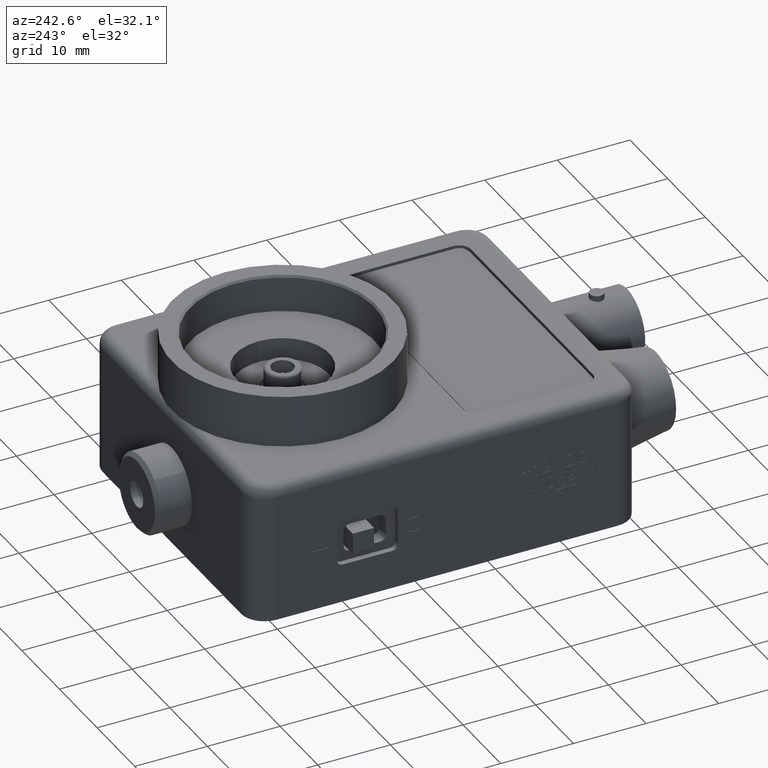
[diagram: clean part render]
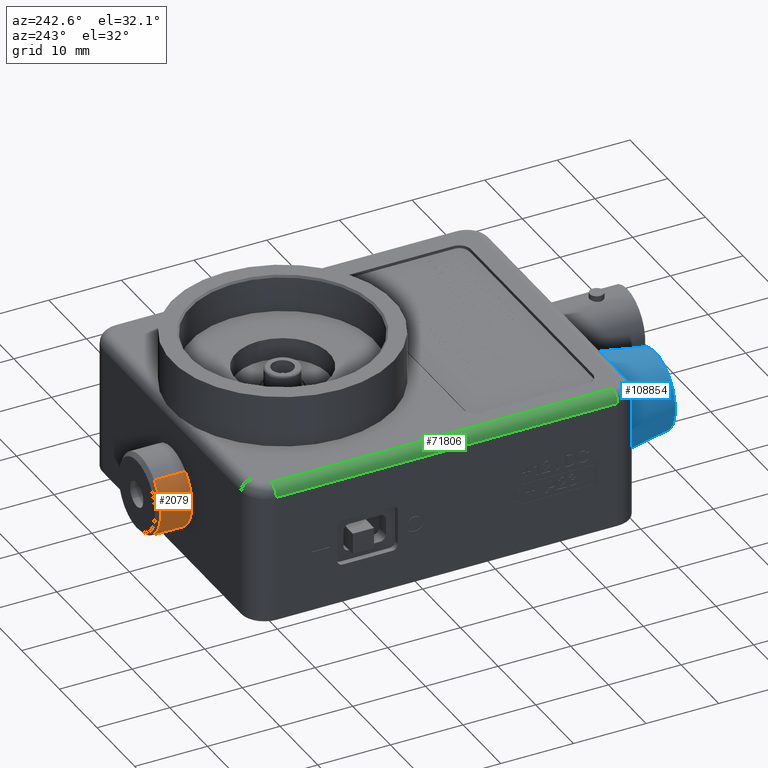
[diagram: same view with three faces highlighted in distinct colors, each labeled with its STEP entity id]
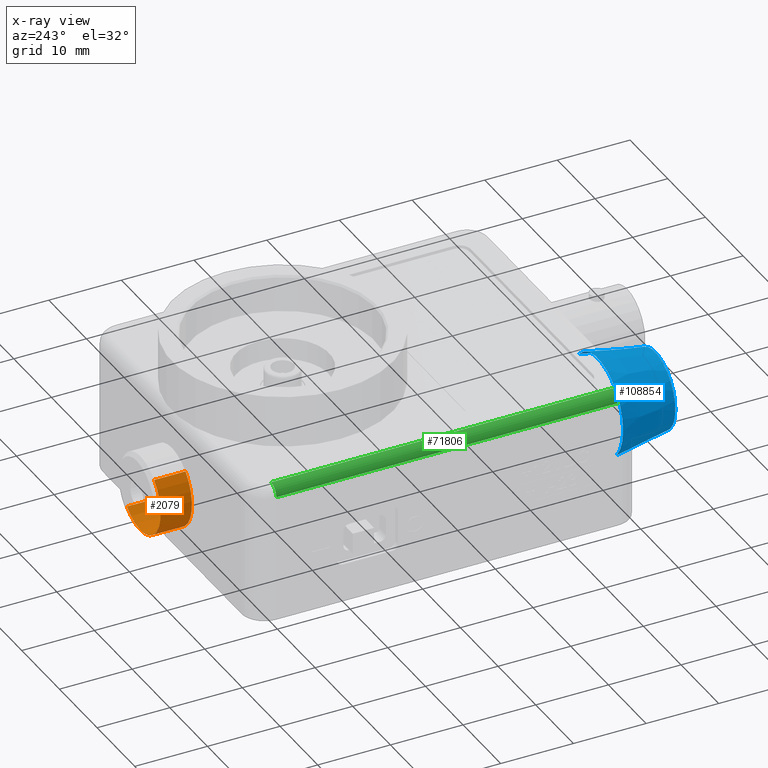
[diagram: x-ray of the same camera — body ghosted, the three highlighted faces saturated]
A machine part, auxiliary view with three faces highlighted in distinct colors.
The next image is the same camera in x-ray (body ghosted, the three faces saturated) — at least one of them is partly hidden behind the body in this view.
Their STEP definitions:

[orange] entity #2079 — the highlighted cylindrical surface (partial cylindrical patch) has radius 5.334 mm, axis along (0, 1, 0).
#2079 = ADVANCED_FACE ( 'NONE', ( #81394 ), #65444, .T. ) ;
#2466 = DIRECTION ( 'NONE',  ( 0.0000000000000000000, 1.000000000000000000, 0.0000000000000000000 ) ) ;
#3750 = EDGE_CURVE ( 'NONE', #24296, #100043, #37556, .T. ) ;
#4723 = DIRECTION ( 'NONE',  ( 0.0000000000000000000, 1.000000000000000000, 0.0000000000000000000 ) ) ;
#10917 = DIRECTION ( 'NONE',  ( -0.0000000000000000000, -1.000000000000000000, -0.0000000000000000000 ) ) ;
#11934 = EDGE_CURVE ( 'NONE', #111911, #100043, #129562, .T. ) ;
#12579 = ORIENTED_EDGE ( 'NONE', *, *, #85209, .T. ) ;
#23349 = AXIS2_PLACEMENT_3D ( 'NONE', #89732, #28663, #100007 ) ;
#23841 = CARTESIAN_POINT ( 'NONE',  ( 0.9923209466100489900, 2.100000000000000100, 0.1755825522940508100 ) ) ;
#24296 = VERTEX_POINT ( 'NONE', #114654 ) ;
#28653 = AXIS2_PLACEMENT_3D ( 'NONE', #72097, #10917, #82247 ) ;
#28663 = DIRECTION ( 'NONE',  ( 0.0000000000000000000, 1.000000000000000000, 0.0000000000000000000 ) ) ;
#37556 = CIRCLE ( 'NONE', #28653, 0.2099999999999999600 ) ;
#39249 = VERTEX_POINT ( 'NONE', #105166 ) ;
#41910 = DIRECTION ( 'NONE',  ( 0.0000000000000000000, 1.000000000000000000, 0.0000000000000000000 ) ) ;
#43030 = CARTESIAN_POINT ( 'NONE',  ( 0.8500000000000000900, 2.100000000000000100, 0.3300000000000001300 ) ) ;
#54771 = LINE ( 'NONE', #93486, #105793 ) ;
#62218 = EDGE_LOOP ( 'NONE', ( #72583, #12579, #90927, #76916 ) ) ;
#65444 = CYLINDRICAL_SURFACE ( 'NONE', #85701, 0.2099999999999999600 ) ;
#69007 = CIRCLE ( 'NONE', #23349, 0.2099999999999999600 ) ;
#72097 = CARTESIAN_POINT ( 'NONE',  ( 0.8500000000000000900, 2.270000000000000000, 0.3300000000000001300 ) ) ;
#72583 = ORIENTED_EDGE ( 'NONE', *, *, #95932, .T. ) ;
#76095 = CARTESIAN_POINT ( 'NONE',  ( 0.9923209466100489900, 2.100000000000000100, 0.1755825522940508100 ) ) ;
#76916 = ORIENTED_EDGE ( 'NONE', *, *, #11934, .F. ) ;
#81394 = FACE_OUTER_BOUND ( 'NONE', #62218, .T. ) ;
#82247 = DIRECTION ( 'NONE',  ( 0.6777187933811854600, 0.0000000000000000000, -0.7353211795521396000 ) ) ;
#85209 = EDGE_CURVE ( 'NONE', #39249, #24296, #54771, .T. ) ;
#85701 = AXIS2_PLACEMENT_3D ( 'NONE', #43030, #2466, #114803 ) ;
#89732 = CARTESIAN_POINT ( 'NONE',  ( 0.8500000000000000900, 2.100000000000000100, 0.3300000000000001300 ) ) ;
#90927 = ORIENTED_EDGE ( 'NONE', *, *, #3750, .T. ) ;
#93486 = CARTESIAN_POINT ( 'NONE',  ( 0.7076790533899511800, 2.100000000000000100, 0.4844174477059494100 ) ) ;
#95932 = EDGE_CURVE ( 'NONE', #111911, #39249, #69007, .T. ) ;
#100007 = DIRECTION ( 'NONE',  ( 0.6777187933811854600, 0.0000000000000000000, -0.7353211795521396000 ) ) ;
#100043 = VERTEX_POINT ( 'NONE', #118557 ) ;
#105166 = CARTESIAN_POINT ( 'NONE',  ( 0.7076790533899511800, 2.100000000000000100, 0.4844174477059494100 ) ) ;
#105793 = VECTOR ( 'NONE', #41910, 39.37007874015748100 ) ;
#111911 = VERTEX_POINT ( 'NONE', #23841 ) ;
#114654 = CARTESIAN_POINT ( 'NONE',  ( 0.7076790533899511800, 2.270000000000000000, 0.4844174477059494100 ) ) ;
#114803 = DIRECTION ( 'NONE',  ( 0.6777187933811854600, 0.0000000000000000000, -0.7353211795521396000 ) ) ;
#118557 = CARTESIAN_POINT ( 'NONE',  ( 0.9923209466100489900, 2.270000000000000000, 0.1755825522940508100 ) ) ;
#126405 = VECTOR ( 'NONE', #4723, 39.37007874015748100 ) ;
#129562 = LINE ( 'NONE', #76095, #126405 ) ;

[blue] entity #108854 — the highlighted conical surface has half-angle 10 deg.
#1832 = AXIS2_PLACEMENT_3D ( 'NONE', #76150, #84111, #76565 ) ;
#1939 = DIRECTION ( 'NONE',  ( -0.7380313187773465100, -8.263232915062124700E-017, -0.6747664577494724100 ) ) ;
#10655 = CIRCLE ( 'NONE', #38000, 0.2650000000000000700 ) ;
#13446 = EDGE_LOOP ( 'NONE', ( #14402, #129576, #53503, #63267 ) ) ;
#14402 = ORIENTED_EDGE ( 'NONE', *, *, #18597, .T. ) ;
#16097 = VERTEX_POINT ( 'NONE', #46665 ) ;
#18597 = EDGE_CURVE ( 'NONE', #30653, #109587, #90707, .T. ) ;
#23873 = CONICAL_SURFACE ( 'NONE', #1832, 0.2650000000000000700, 0.1745329251994333400 ) ;
#25182 = CARTESIAN_POINT ( 'NONE',  ( 0.6455782994759956500, 3.751355149603842600E-017, 0.5788131113036092400 ) ) ;
#28704 = DIRECTION ( 'NONE',  ( -0.1281577935668078400, 0.9848077530122080200, -0.1171719657389660400 ) ) ;
#30653 = VERTEX_POINT ( 'NONE', #130320 ) ;
#30716 = EDGE_CURVE ( 'NONE', #30653, #73994, #68381, .T. ) ;
#36950 = CARTESIAN_POINT ( 'NONE',  ( 0.4499999999999988500, -0.3117364817766691300, 0.3999999999999990200 ) ) ;
#37179 = LINE ( 'NONE', #25182, #91453 ) ;
#38000 = AXIS2_PLACEMENT_3D ( 'NONE', #124087, #63053, #1939 ) ;
#39846 = FACE_OUTER_BOUND ( 'NONE', #13446, .T. ) ;
#46665 = CARTESIAN_POINT ( 'NONE',  ( 0.6455782994759956500, 3.751355149603844400E-017, 0.5788131113036092400 ) ) ;
#47294 = DIRECTION ( 'NONE',  ( 0.7380313187773465100, 0.0000000000000000000, 0.6747664577494725300 ) ) ;
#53503 = ORIENTED_EDGE ( 'NONE', *, *, #103918, .T. ) ;
#62037 = CARTESIAN_POINT ( 'NONE',  ( 0.6050105241344847500, -0.3117364817766691300, 0.5417228505389086700 ) ) ;
#63053 = DIRECTION ( 'NONE',  ( -2.027184870627574200E-031, -1.000000000000000000, 1.224606353822364700E-016 ) ) ;
#63267 = ORIENTED_EDGE ( 'NONE', *, *, #30716, .F. ) ;
#68381 = LINE ( 'NONE', #79527, #95457 ) ;
#73994 = VERTEX_POINT ( 'NONE', #120889 ) ;
#75027 = AXIS2_PLACEMENT_3D ( 'NONE', #36950, #108274, #47294 ) ;
#76150 = CARTESIAN_POINT ( 'NONE',  ( 0.4499999999999988500, 1.561598427112379200E-017, 0.3999999999999989700 ) ) ;
#76565 = DIRECTION ( 'NONE',  ( -0.7380313187773465100, -8.263232915062124700E-017, -0.6747664577494724100 ) ) ;
#79527 = CARTESIAN_POINT ( 'NONE',  ( 0.2544217005240019800, -6.281582953790846600E-018, 0.2211868886963886900 ) ) ;
#84111 = DIRECTION ( 'NONE',  ( 2.027184870627574200E-031, 1.000000000000000000, -1.224606353822364700E-016 ) ) ;
#86265 = DIRECTION ( 'NONE',  ( 0.1281577935668078400, 0.9848077530122080200, 0.1171719657389657900 ) ) ;
#90707 = CIRCLE ( 'NONE', #75027, 0.2100324473916404800 ) ;
#91453 = VECTOR ( 'NONE', #86265, 39.37007874015748900 ) ;
#95457 = VECTOR ( 'NONE', #28704, 39.37007874015748900 ) ;
#103918 = EDGE_CURVE ( 'NONE', #16097, #73994, #10655, .T. ) ;
#108274 = DIRECTION ( 'NONE',  ( 2.027184870627574200E-031, 1.000000000000000000, -1.224606353822364700E-016 ) ) ;
#108854 = ADVANCED_FACE ( 'NONE', ( #39846 ), #23873, .T. ) ;
#109587 = VERTEX_POINT ( 'NONE', #62037 ) ;
#120889 = CARTESIAN_POINT ( 'NONE',  ( 0.2544217005240019800, -6.281582953790854300E-018, 0.2211868886963886900 ) ) ;
#124087 = CARTESIAN_POINT ( 'NONE',  ( 0.4499999999999988500, 1.561598427112379200E-017, 0.3999999999999989700 ) ) ;
#128355 = EDGE_CURVE ( 'NONE', #109587, #16097, #37179, .T. ) ;
#129576 = ORIENTED_EDGE ( 'NONE', *, *, #128355, .T. ) ;
#130320 = CARTESIAN_POINT ( 'NONE',  ( 0.2949894758655127700, -0.3117364817766691300, 0.2582771494610893200 ) ) ;

[green] entity #71806 — the highlighted cylindrical surface (edge-blend (fillet) strip) has radius 1.397 mm, axis along (0, -1, 0).
#3998 = CARTESIAN_POINT ( 'NONE',  ( 0.05499999999999999300, 2.100000000000000100, 0.6950000000000000600 ) ) ;
#13629 = VERTEX_POINT ( 'NONE', #35243 ) ;
#17330 = CIRCLE ( 'NONE', #83951, 0.05499999999999995900 ) ;
#19372 = CARTESIAN_POINT ( 'NONE',  ( 0.05499999999999999300, 2.100000000000000100, 0.7500000000000001100 ) ) ;
#25171 = CARTESIAN_POINT ( 'NONE',  ( 0.0000000000000000000, 0.1249999999999999900, 0.6950000000000000600 ) ) ;
#26067 = ORIENTED_EDGE ( 'NONE', *, *, #59308, .F. ) ;
#32218 = EDGE_CURVE ( 'NONE', #117729, #124160, #42271, .T. ) ;
#33706 = EDGE_LOOP ( 'NONE', ( #89777, #26067, #120945, #131342 ) ) ;
#35243 = CARTESIAN_POINT ( 'NONE',  ( 0.05499999999999999300, 1.975000000000000100, 0.7500000000000001100 ) ) ;
#35534 = CARTESIAN_POINT ( 'NONE',  ( 0.0000000000000000000, 0.0000000000000000000, 0.6950000000000000600 ) ) ;
#37472 = VERTEX_POINT ( 'NONE', #128197 ) ;
#39081 = AXIS2_PLACEMENT_3D ( 'NONE', #3998, #115895, #126592 ) ;
#39841 = CARTESIAN_POINT ( 'NONE',  ( 0.05499999999999998600, 0.1249999999999999900, 0.6950000000000000600 ) ) ;
#42271 = CIRCLE ( 'NONE', #89450, 0.05499999999999995900 ) ;
#47430 = EDGE_CURVE ( 'NONE', #117729, #37472, #122763, .T. ) ;
#49904 = LINE ( 'NONE', #19372, #73864 ) ;
#50137 = DIRECTION ( 'NONE',  ( 0.0000000000000000000, 0.0000000000000000000, 1.000000000000000000 ) ) ;
#53188 = CARTESIAN_POINT ( 'NONE',  ( 0.05500000000000000000, 1.975000000000000100, 0.6950000000000000600 ) ) ;
#59308 = EDGE_CURVE ( 'NONE', #13629, #124160, #49904, .T. ) ;
#60126 = CYLINDRICAL_SURFACE ( 'NONE', #39081, 0.05499999999999995900 ) ;
#60392 = DIRECTION ( 'NONE',  ( 0.0000000000000000000, -1.000000000000000000, 0.0000000000000000000 ) ) ;
#62370 = EDGE_CURVE ( 'NONE', #37472, #13629, #17330, .T. ) ;
#63476 = DIRECTION ( 'NONE',  ( 0.0000000000000000000, 0.0000000000000000000, 1.000000000000000000 ) ) ;
#71806 = ADVANCED_FACE ( 'NONE', ( #100044 ), #60126, .T. ) ;
#73864 = VECTOR ( 'NONE', #60392, 39.37007874015748100 ) ;
#83951 = AXIS2_PLACEMENT_3D ( 'NONE', #53188, #124486, #63476 ) ;
#89450 = AXIS2_PLACEMENT_3D ( 'NONE', #39841, #111183, #50137 ) ;
#89777 = ORIENTED_EDGE ( 'NONE', *, *, #32218, .T. ) ;
#92477 = VECTOR ( 'NONE', #96624, 39.37007874015748100 ) ;
#96624 = DIRECTION ( 'NONE',  ( -0.0000000000000000000, 1.000000000000000000, -0.0000000000000000000 ) ) ;
#100044 = FACE_OUTER_BOUND ( 'NONE', #33706, .T. ) ;
#111183 = DIRECTION ( 'NONE',  ( 0.0000000000000000000, 1.000000000000000000, -0.0000000000000000000 ) ) ;
#115895 = DIRECTION ( 'NONE',  ( 0.0000000000000000000, -1.000000000000000000, 0.0000000000000000000 ) ) ;
#117729 = VERTEX_POINT ( 'NONE', #25171 ) ;
#120945 = ORIENTED_EDGE ( 'NONE', *, *, #62370, .F. ) ;
#122763 = LINE ( 'NONE', #35534, #92477 ) ;
#124160 = VERTEX_POINT ( 'NONE', #127465 ) ;
#124486 = DIRECTION ( 'NONE',  ( 0.0000000000000000000, 1.000000000000000000, 0.0000000000000000000 ) ) ;
#126592 = DIRECTION ( 'NONE',  ( 0.0000000000000000000, 0.0000000000000000000, -1.000000000000000000 ) ) ;
#127465 = CARTESIAN_POINT ( 'NONE',  ( 0.05499999999999999300, 0.1249999999999999900, 0.7500000000000001100 ) ) ;
#128197 = CARTESIAN_POINT ( 'NONE',  ( 0.0000000000000000000, 1.975000000000000100, 0.6950000000000000600 ) ) ;
#131342 = ORIENTED_EDGE ( 'NONE', *, *, #47430, .F. ) ;